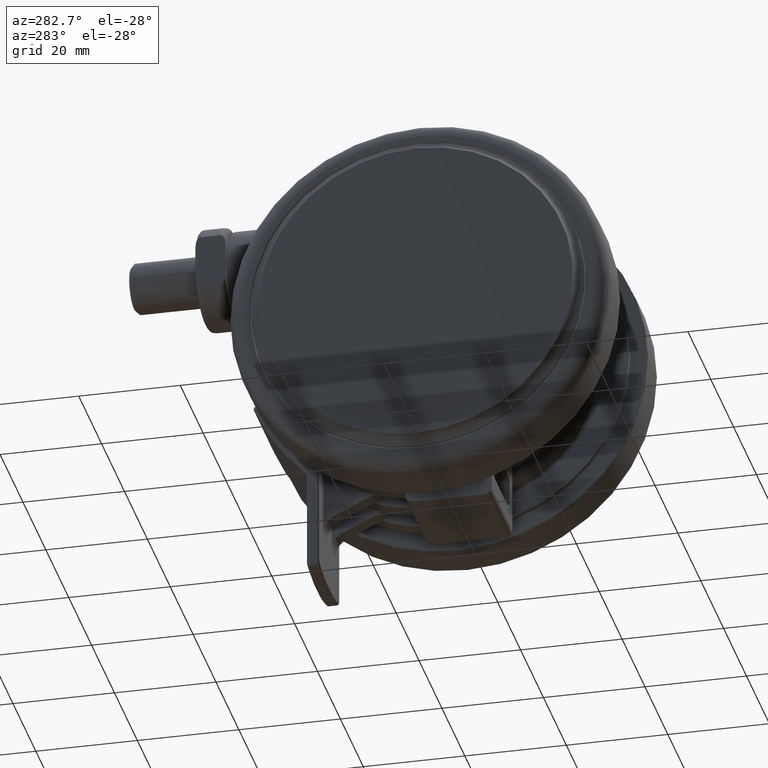
[diagram: clean part render]
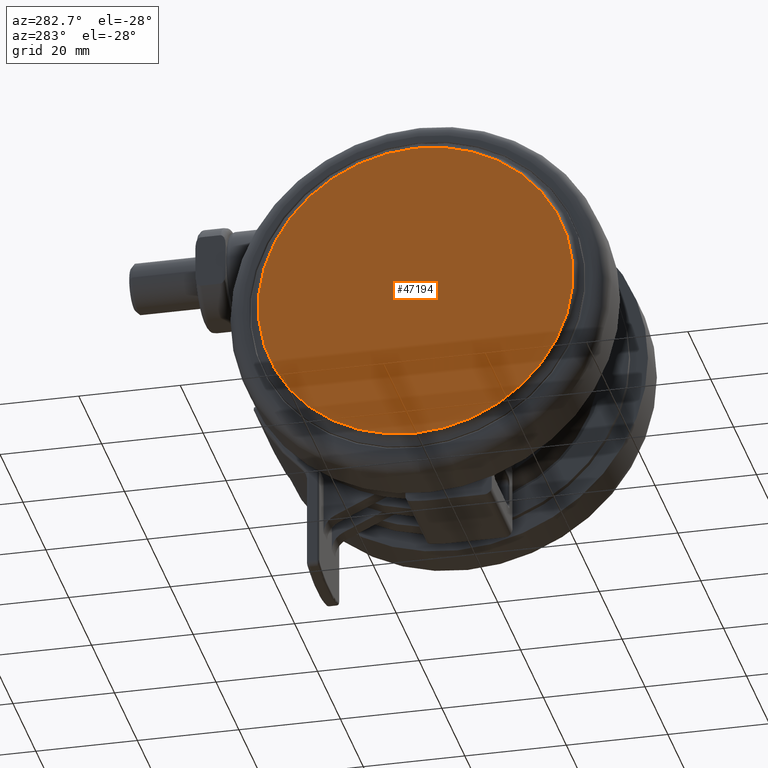
[diagram: same view with one face highlighted and labeled with its STEP entity id]
A machine part, auxiliary view. The second image highlights one B-rep face of the part: STEP entity #47194.
In plain terms, the highlighted planar face has unit normal (1, 0, 0).
Its self-contained STEP definition (entity closure, byte-faithful):
#729 = AXIS2_PLACEMENT_3D ( 'NONE', #20366, #46518, #24128 ) ;
#1512 = FACE_OUTER_BOUND ( 'NONE', #16109, .T. ) ;
#4071 = EDGE_CURVE ( 'NONE', #48141, #4239, #40673, .T. ) ;
#4239 = VERTEX_POINT ( 'NONE', #19059 ) ;
#12938 = DIRECTION ( 'NONE',  ( 0.0000000000000000000, 0.0000000000000000000, 1.000000000000000000 ) ) ;
#14296 = DIRECTION ( 'NONE',  ( 0.0000000000000000000, -0.0000000000000000000, -1.000000000000000000 ) ) ;
#16109 = EDGE_LOOP ( 'NONE', ( #18593, #32888 ) ) ;
#18593 = ORIENTED_EDGE ( 'NONE', *, *, #4071, .T. ) ;
#19059 = CARTESIAN_POINT ( 'NONE',  ( -9.955497481147852200E-014, 31.00000000000000000, -48.99999999999993600 ) ) ;
#20366 = CARTESIAN_POINT ( 'NONE',  ( 0.0000000000000000000, 0.0000000000000000000, -48.99999999999993600 ) ) ;
#21936 = AXIS2_PLACEMENT_3D ( 'NONE', #36733, #14296, #40491 ) ;
#24128 = DIRECTION ( 'NONE',  ( 2.997602166487920300E-015, -1.000000000000000000, 0.0000000000000000000 ) ) ;
#24200 = AXIS2_PLACEMENT_3D ( 'NONE', #31636, #12938, #39129 ) ;
#24508 = EDGE_CURVE ( 'NONE', #4239, #48141, #40720, .T. ) ;
#30193 = CARTESIAN_POINT ( 'NONE',  ( 9.292566716112552700E-014, -31.00000000000000000, -48.99999999999993600 ) ) ;
#31636 = CARTESIAN_POINT ( 'NONE',  ( -31.00000000000000000, -9.292566716112552700E-014, -48.99999999999993600 ) ) ;
#32888 = ORIENTED_EDGE ( 'NONE', *, *, #24508, .T. ) ;
#35367 = PLANE ( 'NONE',  #24200 ) ;
#36733 = CARTESIAN_POINT ( 'NONE',  ( 0.0000000000000000000, 0.0000000000000000000, -48.99999999999993600 ) ) ;
#39129 = DIRECTION ( 'NONE',  ( -2.997602166487920300E-015, 1.000000000000000000, 0.0000000000000000000 ) ) ;
#40491 = DIRECTION ( 'NONE',  ( 2.997602166487920300E-015, -1.000000000000000000, 0.0000000000000000000 ) ) ;
#40673 = CIRCLE ( 'NONE', #21936, 31.00000000000000000 ) ;
#40720 = CIRCLE ( 'NONE', #729, 31.00000000000000000 ) ;
#46518 = DIRECTION ( 'NONE',  ( 0.0000000000000000000, -0.0000000000000000000, -1.000000000000000000 ) ) ;
#47194 = ADVANCED_FACE ( 'NONE', ( #1512 ), #35367, .F. ) ;
#48141 = VERTEX_POINT ( 'NONE', #30193 ) ;